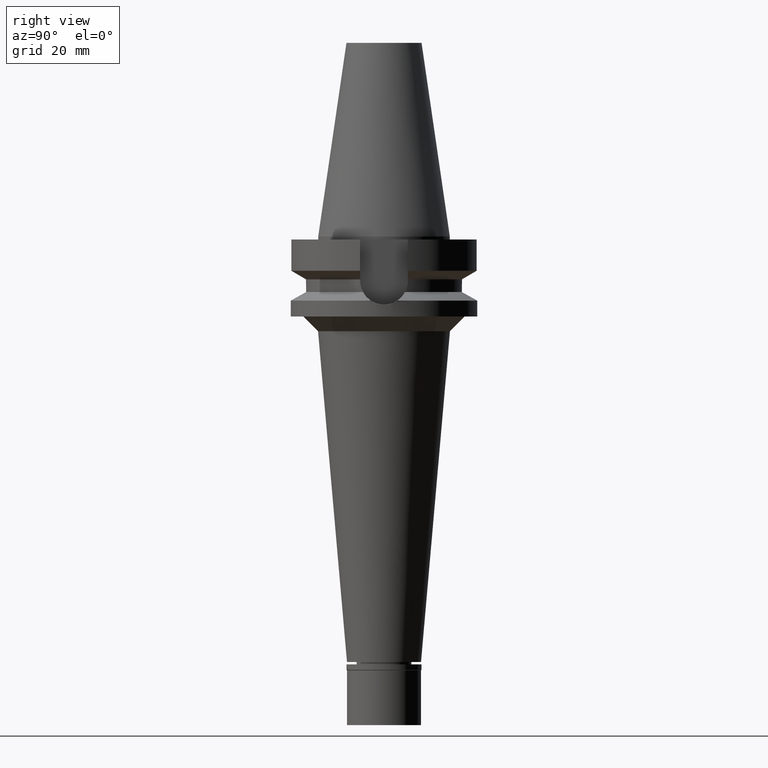
[diagram: clean part render]
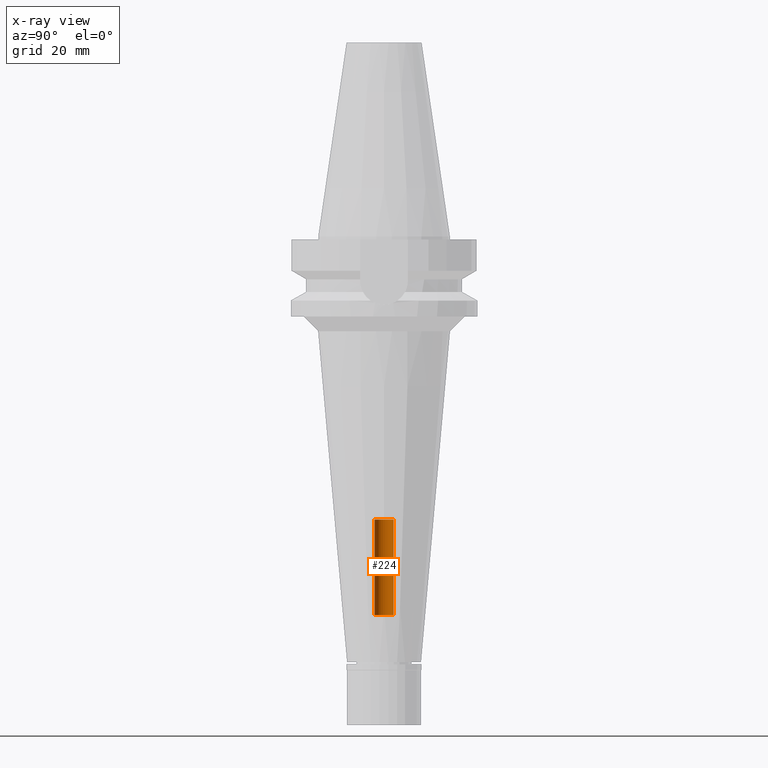
[diagram: x-ray — body ghosted, one internal face saturated and labeled with its STEP entity id]
A machine part, right view, then the same camera in x-ray: the body is ghosted and one INTERNAL B-rep face — a face not visible from any outside direction — is saturated and labeled: STEP entity #224.
In plain terms, the highlighted cylindrical surface (edge-blend (fillet) strip) has radius 3.2 mm, axis along (0, 0, -1).
Its self-contained STEP definition (entity closure, byte-faithful):
#62 = CARTESIAN_POINT ( 'NONE',  ( 0.0000000000000000000, 2.162848711973999723E-14, -95.60000000000000853 ) ) ;
#140 = CARTESIAN_POINT ( 'NONE',  ( 0.0000000000000000000, -3.200000000000000178, -127.7999999999999972 ) ) ;
#224 = ADVANCED_FACE ( 'NONE', ( #2700 ), #2714, .F. ) ;
#409 = VERTEX_POINT ( 'NONE', #1173 ) ;
#548 = DIRECTION ( 'NONE',  ( 0.0000000000000000000, 0.0000000000000000000, -1.000000000000000000 ) ) ;
#565 = AXIS2_PLACEMENT_3D ( 'NONE', #998, #1012, #1770 ) ;
#575 = VECTOR ( 'NONE', #1117, 1000.000000000000000 ) ;
#707 = ORIENTED_EDGE ( 'NONE', *, *, #1428, .T. ) ;
#721 = VECTOR ( 'NONE', #1358, 1000.000000000000000 ) ;
#730 = AXIS2_PLACEMENT_3D ( 'NONE', #846, #548, #2756 ) ;
#846 = CARTESIAN_POINT ( 'NONE',  ( 0.0000000000000000000, 2.162848711973999723E-14, -127.7999999999999972 ) ) ;
#888 = ORIENTED_EDGE ( 'NONE', *, *, #970, .T. ) ;
#970 = EDGE_CURVE ( 'NONE', #409, #2602, #1039, .T. ) ;
#998 = CARTESIAN_POINT ( 'NONE',  ( 0.0000000000000000000, 2.162848711973999723E-14, 76.60999999999999943 ) ) ;
#1012 = DIRECTION ( 'NONE',  ( 0.0000000000000000000, 0.0000000000000000000, -1.000000000000000000 ) ) ;
#1039 = LINE ( 'NONE', #2308, #721 ) ;
#1101 = ORIENTED_EDGE ( 'NONE', *, *, #2481, .F. ) ;
#1117 = DIRECTION ( 'NONE',  ( 0.0000000000000000000, 0.0000000000000000000, 1.000000000000000000 ) ) ;
#1131 = LINE ( 'NONE', #140, #575 ) ;
#1173 = CARTESIAN_POINT ( 'NONE',  ( 0.0000000000000000000, 3.200000000000000178, -127.7999999999999972 ) ) ;
#1237 = AXIS2_PLACEMENT_3D ( 'NONE', #62, #1605, #1731 ) ;
#1305 = VERTEX_POINT ( 'NONE', #2962 ) ;
#1358 = DIRECTION ( 'NONE',  ( 0.0000000000000000000, 0.0000000000000000000, 1.000000000000000000 ) ) ;
#1428 = EDGE_CURVE ( 'NONE', #2602, #1461, #1905, .T. ) ;
#1461 = VERTEX_POINT ( 'NONE', #2575 ) ;
#1543 = CIRCLE ( 'NONE', #730, 3.200000000000000178 ) ;
#1570 = ORIENTED_EDGE ( 'NONE', *, *, #1799, .T. ) ;
#1605 = DIRECTION ( 'NONE',  ( 0.0000000000000000000, 0.0000000000000000000, 1.000000000000000000 ) ) ;
#1731 = DIRECTION ( 'NONE',  ( 0.0000000000000000000, 1.000000000000000000, 0.0000000000000000000 ) ) ;
#1770 = DIRECTION ( 'NONE',  ( 0.0000000000000000000, -1.000000000000000000, 0.0000000000000000000 ) ) ;
#1799 = EDGE_CURVE ( 'NONE', #1305, #409, #1543, .T. ) ;
#1905 = CIRCLE ( 'NONE', #1237, 3.200000000000000178 ) ;
#2150 = CARTESIAN_POINT ( 'NONE',  ( 0.0000000000000000000, 3.200000000000000178, -95.60000000000000853 ) ) ;
#2308 = CARTESIAN_POINT ( 'NONE',  ( 0.0000000000000000000, 3.200000000000000178, -127.7999999999999972 ) ) ;
#2460 = EDGE_LOOP ( 'NONE', ( #707, #1101, #1570, #888 ) ) ;
#2481 = EDGE_CURVE ( 'NONE', #1305, #1461, #1131, .T. ) ;
#2575 = CARTESIAN_POINT ( 'NONE',  ( 0.0000000000000000000, -3.200000000000000178, -95.60000000000000853 ) ) ;
#2602 = VERTEX_POINT ( 'NONE', #2150 ) ;
#2700 = FACE_OUTER_BOUND ( 'NONE', #2460, .T. ) ;
#2714 = CYLINDRICAL_SURFACE ( 'NONE', #565, 3.200000000000000178 ) ;
#2756 = DIRECTION ( 'NONE',  ( 0.0000000000000000000, -1.000000000000000000, 0.0000000000000000000 ) ) ;
#2962 = CARTESIAN_POINT ( 'NONE',  ( 0.0000000000000000000, -3.200000000000000178, -127.7999999999999972 ) ) ;